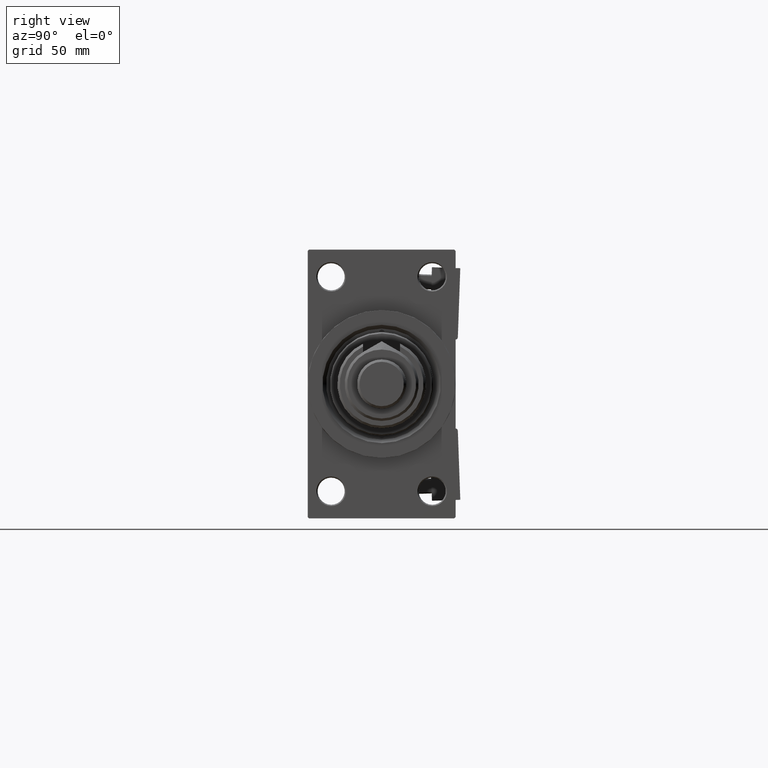
[diagram: clean part render]
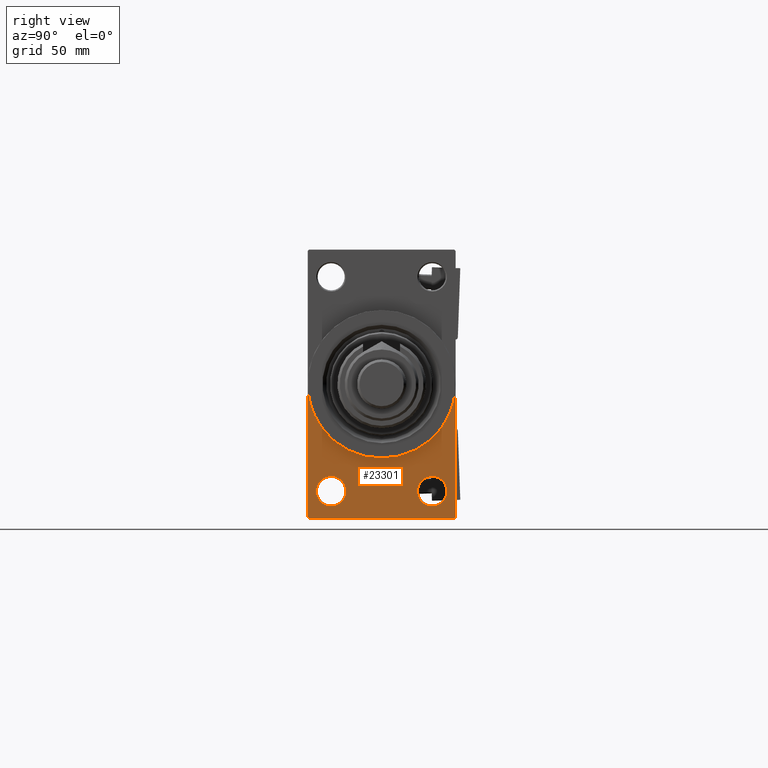
[diagram: same view with one face highlighted and labeled with its STEP entity id]
A machine part, right view. The second image highlights one B-rep face of the part: STEP entity #23301.
In plain terms, the highlighted planar face has unit normal (-1, 0, 0).
Its self-contained STEP definition (entity closure, byte-faithful):
#159 = ORIENTED_EDGE ( 'NONE', *, *, #383, .F. ) ;
#237 = DIRECTION ( 'NONE',  ( 0.000000000000000000, 0.000000000000000000, 1.000000000000000000 ) ) ;
#383 = EDGE_CURVE ( 'NONE', #52347, #12535, #4298, .T. ) ;
#1425 = CARTESIAN_POINT ( 'NONE',  ( 138.0000000000000000, 20.50000000000000000, -49.50000000000008527 ) ) ;
#1541 = EDGE_CURVE ( 'NONE', #43298, #36819, #26474, .T. ) ;
#1850 = VECTOR ( 'NONE', #32172, 1000.000000000000000 ) ;
#2533 = DIRECTION ( 'NONE',  ( 0.000000000000000000, 0.000000000000000000, -1.000000000000000000 ) ) ;
#3586 = AXIS2_PLACEMENT_3D ( 'NONE', #43523, #7402, #35017 ) ;
#4038 = ORIENTED_EDGE ( 'NONE', *, *, #26960, .T. ) ;
#4049 = CARTESIAN_POINT ( 'NONE',  ( 138.0000000000000000, 29.99999999999999645, 54.49999999999999289 ) ) ;
#4298 = LINE ( 'NONE', #4049, #1850 ) ;
#4798 = VECTOR ( 'NONE', #6443, 1000.000000000000000 ) ;
#5686 = DIRECTION ( 'NONE',  ( 0.000000000000000000, 0.000000000000000000, -1.000000000000000000 ) ) ;
#6443 = DIRECTION ( 'NONE',  ( 0.000000000000000000, 0.7071067811865352493, -0.7071067811865597852 ) ) ;
#6928 = VERTEX_POINT ( 'NONE', #11366 ) ;
#7402 = DIRECTION ( 'NONE',  ( -1.000000000000000000, 0.000000000000000000, -0.000000000000000000 ) ) ;
#7743 = DIRECTION ( 'NONE',  ( -1.000000000000000000, 0.000000000000000000, -0.000000000000000000 ) ) ;
#7927 = AXIS2_PLACEMENT_3D ( 'NONE', #25047, #42053, #5686 ) ;
#8183 = CARTESIAN_POINT ( 'NONE',  ( 138.0000000000000000, 20.50000000000000000, -43.50000000000000000 ) ) ;
#8528 = DIRECTION ( 'NONE',  ( 0.000000000000000000, 0.000000000000000000, 1.000000000000000000 ) ) ;
#9311 = CIRCLE ( 'NONE', #38982, 6.000000000000088818 ) ;
#10124 = CARTESIAN_POINT ( 'NONE',  ( 138.0000000000000000, 3.673940397442059178E-15, -30.00000000000000000 ) ) ;
#10531 = EDGE_CURVE ( 'NONE', #33565, #46404, #22356, .T. ) ;
#10842 = AXIS2_PLACEMENT_3D ( 'NONE', #47818, #27580, #47045 ) ;
#11263 = AXIS2_PLACEMENT_3D ( 'NONE', #13619, #17328, #33525 ) ;
#11366 = CARTESIAN_POINT ( 'NONE',  ( 138.0000000000000000, 29.49999999999999645, -54.49999999999999289 ) ) ;
#12338 = VERTEX_POINT ( 'NONE', #46580 ) ;
#12535 = VERTEX_POINT ( 'NONE', #21515 ) ;
#12795 = VERTEX_POINT ( 'NONE', #25099 ) ;
#13292 = DIRECTION ( 'NONE',  ( -0.000000000000000000, 0.7071067811865474617, 0.7071067811865474617 ) ) ;
#13619 = CARTESIAN_POINT ( 'NONE',  ( 138.0000000000000000, 0.000000000000000000, 0.000000000000000000 ) ) ;
#14527 = EDGE_CURVE ( 'NONE', #39316, #12338, #50180, .T. ) ;
#16578 = CARTESIAN_POINT ( 'NONE',  ( 138.0000000000000000, -30.00000000000000000, -53.99999999999998579 ) ) ;
#16591 = EDGE_CURVE ( 'NONE', #36819, #43298, #9311, .T. ) ;
#16980 = CIRCLE ( 'NONE', #24595, 6.000000000000088818 ) ;
#17183 = ORIENTED_EDGE ( 'NONE', *, *, #10531, .T. ) ;
#17328 = DIRECTION ( 'NONE',  ( -1.000000000000000000, 0.000000000000000000, -0.000000000000000000 ) ) ;
#17343 = EDGE_CURVE ( 'NONE', #12795, #33565, #30410, .T. ) ;
#19243 = ORIENTED_EDGE ( 'NONE', *, *, #17343, .T. ) ;
#19294 = DIRECTION ( 'NONE',  ( 0.000000000000000000, -1.000000000000000000, -1.156482317317871478E-16 ) ) ;
#20401 = CARTESIAN_POINT ( 'NONE',  ( 138.0000000000000000, 20.50000000000000000, -43.50000000000000000 ) ) ;
#21515 = CARTESIAN_POINT ( 'NONE',  ( 138.0000000000000000, 29.99999999999999645, -53.99999999999999289 ) ) ;
#22356 = LINE ( 'NONE', #38576, #4798 ) ;
#22918 = CARTESIAN_POINT ( 'NONE',  ( 138.0000000000000000, -20.50000000000000000, -37.49999999999990763 ) ) ;
#23301 = ADVANCED_FACE ( 'NONE', ( #33793, #37781, #30067 ), #30325, .F. ) ;
#23489 = ORIENTED_EDGE ( 'NONE', *, *, #47823, .T. ) ;
#24595 = AXIS2_PLACEMENT_3D ( 'NONE', #8183, #32059, #40582 ) ;
#24898 = CIRCLE ( 'NONE', #7927, 30.00000000000000000 ) ;
#24959 = CARTESIAN_POINT ( 'NONE',  ( 138.0000000000000000, 29.99999999999999645, -53.99999999999999289 ) ) ;
#25047 = CARTESIAN_POINT ( 'NONE',  ( 138.0000000000000000, 0.000000000000000000, 0.000000000000000000 ) ) ;
#25099 = CARTESIAN_POINT ( 'NONE',  ( 138.0000000000000000, -30.00000000000000000, 0.000000000000000000 ) ) ;
#25345 = EDGE_CURVE ( 'NONE', #31829, #52347, #24898, .T. ) ;
#26119 = ORIENTED_EDGE ( 'NONE', *, *, #16591, .T. ) ;
#26474 = CIRCLE ( 'NONE', #3586, 6.000000000000088818 ) ;
#26960 = EDGE_CURVE ( 'NONE', #6928, #12535, #32386, .T. ) ;
#27204 = ORIENTED_EDGE ( 'NONE', *, *, #25345, .F. ) ;
#27215 = AXIS2_PLACEMENT_3D ( 'NONE', #20401, #36606, #237 ) ;
#27350 = VECTOR ( 'NONE', #13292, 1000.000000000000114 ) ;
#27580 = DIRECTION ( 'NONE',  ( 1.000000000000000000, 0.000000000000000000, 0.000000000000000000 ) ) ;
#27919 = VECTOR ( 'NONE', #19294, 1000.000000000000000 ) ;
#29638 = EDGE_LOOP ( 'NONE', ( #19243, #17183, #40802, #4038, #159, #27204, #31920 ) ) ;
#30067 = FACE_OUTER_BOUND ( 'NONE', #29638, .T. ) ;
#30325 = PLANE ( 'NONE',  #11263 ) ;
#30410 = LINE ( 'NONE', #42120, #34763 ) ;
#31829 = VERTEX_POINT ( 'NONE', #10124 ) ;
#31920 = ORIENTED_EDGE ( 'NONE', *, *, #37435, .F. ) ;
#32059 = DIRECTION ( 'NONE',  ( -1.000000000000000000, 0.000000000000000000, -0.000000000000000000 ) ) ;
#32172 = DIRECTION ( 'NONE',  ( 0.000000000000000000, 0.000000000000000000, -1.000000000000000000 ) ) ;
#32386 = LINE ( 'NONE', #24959, #27350 ) ;
#33525 = DIRECTION ( 'NONE',  ( -0.000000000000000000, 0.000000000000000000, 1.000000000000000000 ) ) ;
#33565 = VERTEX_POINT ( 'NONE', #16578 ) ;
#33793 = FACE_BOUND ( 'NONE', #34468, .T. ) ;
#34468 = EDGE_LOOP ( 'NONE', ( #26119, #48224 ) ) ;
#34763 = VECTOR ( 'NONE', #2533, 1000.000000000000000 ) ;
#35017 = DIRECTION ( 'NONE',  ( 0.000000000000000000, 0.000000000000000000, 1.000000000000000000 ) ) ;
#36283 = EDGE_LOOP ( 'NONE', ( #48226, #23489 ) ) ;
#36606 = DIRECTION ( 'NONE',  ( -1.000000000000000000, 0.000000000000000000, -0.000000000000000000 ) ) ;
#36819 = VERTEX_POINT ( 'NONE', #49298 ) ;
#36933 = CARTESIAN_POINT ( 'NONE',  ( 138.0000000000000000, -20.50000000000000000, -43.50000000000000000 ) ) ;
#37435 = EDGE_CURVE ( 'NONE', #12795, #31829, #49886, .T. ) ;
#37781 = FACE_BOUND ( 'NONE', #36283, .T. ) ;
#38576 = CARTESIAN_POINT ( 'NONE',  ( 138.0000000000000000, -29.50000000000000355, -54.50000000000000000 ) ) ;
#38982 = AXIS2_PLACEMENT_3D ( 'NONE', #36933, #7743, #8528 ) ;
#39316 = VERTEX_POINT ( 'NONE', #1425 ) ;
#40582 = DIRECTION ( 'NONE',  ( 0.000000000000000000, 0.000000000000000000, 1.000000000000000000 ) ) ;
#40802 = ORIENTED_EDGE ( 'NONE', *, *, #45290, .F. ) ;
#42053 = DIRECTION ( 'NONE',  ( 1.000000000000000000, 0.000000000000000000, 0.000000000000000000 ) ) ;
#42120 = CARTESIAN_POINT ( 'NONE',  ( 138.0000000000000000, -30.00000000000000000, 54.50000000000000000 ) ) ;
#43298 = VERTEX_POINT ( 'NONE', #22918 ) ;
#43523 = CARTESIAN_POINT ( 'NONE',  ( 138.0000000000000000, -20.50000000000000000, -43.50000000000000000 ) ) ;
#45290 = EDGE_CURVE ( 'NONE', #6928, #46404, #48018, .T. ) ;
#46289 = CARTESIAN_POINT ( 'NONE',  ( 138.0000000000000000, -29.50000000000000355, -54.50000000000000000 ) ) ;
#46404 = VERTEX_POINT ( 'NONE', #46289 ) ;
#46580 = CARTESIAN_POINT ( 'NONE',  ( 138.0000000000000000, 20.50000000000000000, -37.49999999999990763 ) ) ;
#47045 = DIRECTION ( 'NONE',  ( 0.000000000000000000, 0.000000000000000000, -1.000000000000000000 ) ) ;
#47818 = CARTESIAN_POINT ( 'NONE',  ( 138.0000000000000000, 0.000000000000000000, 0.000000000000000000 ) ) ;
#47823 = EDGE_CURVE ( 'NONE', #12338, #39316, #16980, .T. ) ;
#48018 = LINE ( 'NONE', #48529, #27919 ) ;
#48224 = ORIENTED_EDGE ( 'NONE', *, *, #1541, .T. ) ;
#48226 = ORIENTED_EDGE ( 'NONE', *, *, #14527, .T. ) ;
#48404 = CARTESIAN_POINT ( 'NONE',  ( 138.0000000000000000, 30.00000000000000000, 0.000000000000000000 ) ) ;
#48529 = CARTESIAN_POINT ( 'NONE',  ( 138.0000000000000000, 29.99999999999999645, -54.49999999999999289 ) ) ;
#49298 = CARTESIAN_POINT ( 'NONE',  ( 138.0000000000000000, -20.50000000000000000, -49.50000000000008527 ) ) ;
#49886 = CIRCLE ( 'NONE', #10842, 30.00000000000000000 ) ;
#50180 = CIRCLE ( 'NONE', #27215, 6.000000000000088818 ) ;
#52347 = VERTEX_POINT ( 'NONE', #48404 ) ;